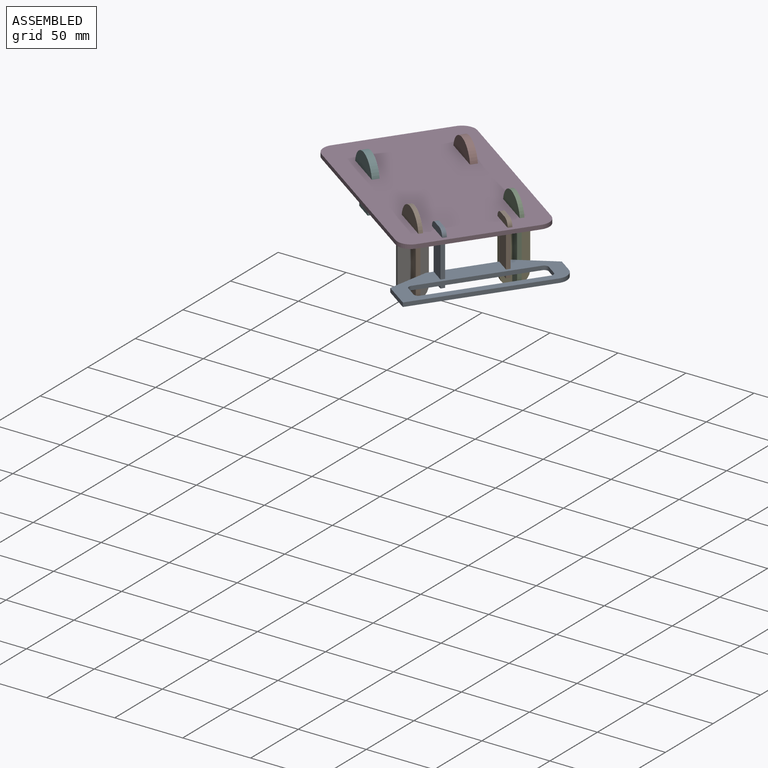
[diagram: assembled view]
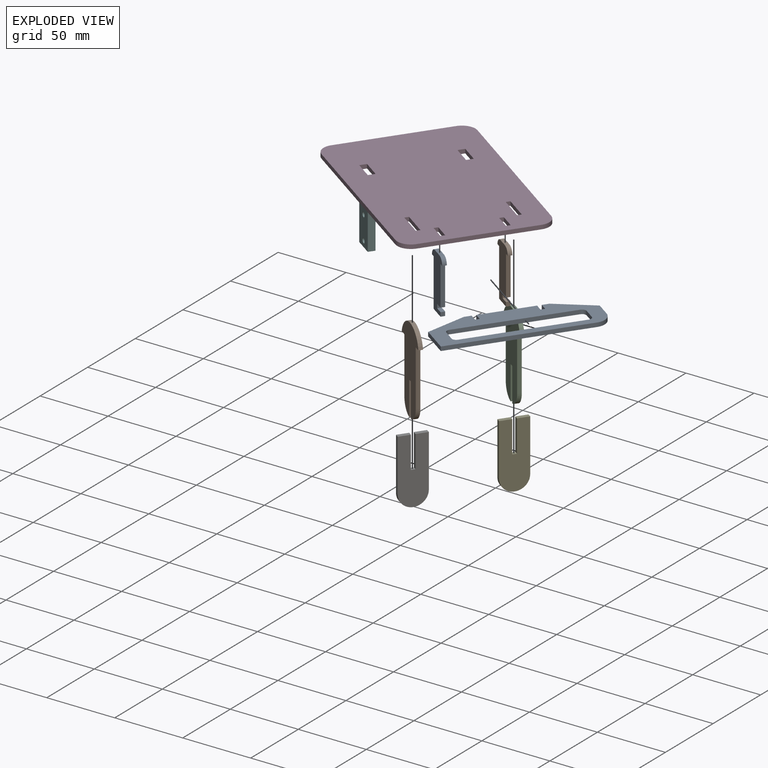
[diagram: exploded view]
GUIDED TOUR — MATED ASSEMBLY (Onshape document 12ebf60cfd6fadaac5f5008e, AutoMate assembly 12ebf60cfd6fadaac5f5008e_ee46109f8fcf921733175e20_84d025841a8fd42f8af90c46_default)

This assembly has 10 components, labeled P0..P9 below (a component is one placed occurrence of a part; the same part can appear more than once), held together by 9 mates. A mate is a constraint between two components; its type names the relative motion it leaves free:
  FASTENED — locks the two components together rigidly (no relative motion).
Axis/direction vectors are unit vectors and 'through' points are millimeter coordinates, both in the assembly's world frame.

MATES
  1. FASTENED "고정 4": P2 <-> P3, direction (0.000, 0.000, -1.000) through (24.18, -59.40, 4.36) mm
  2. FASTENED "고정 2": P5 <-> P3, direction (0.000, 0.000, -1.000) through (-94.03, -54.76, 4.36) mm
  3. FASTENED "고정 3": P9 <-> P3, direction (0.000, 0.000, -1.000) through (-13.10, -112.65, 4.36) mm
  4. FASTENED "고정 9": P0 <-> P8, direction (-0.819, 0.574, 0.000) through (-1.59, -106.67, -26.14) mm
  5. FASTENED "고정 1": P7 <-> P3, direction (0.000, 0.000, -1.000) through (-57.90, -3.15, 4.36) mm
  6. FASTENED "고정 5": P6 <-> P9, direction (0.000, 0.000, 1.000) through (-21.29, -106.91, -22.09) mm
  7. FASTENED "고정 7": P8 <-> P3, direction (0.000, 0.000, -1.000) through (3.33, -110.11, 4.36) mm
  8. FASTENED "고정 8": P1 <-> P3, direction (0.000, 0.000, -1.000) through (27.42, -75.70, 4.36) mm
  9. FASTENED "고정 6": P4 <-> P2, direction (0.000, 0.000, 1.000) through (15.99, -53.66, -22.09) mm

ASSEMBLY ORDER
  1. P7 — the base component [order verified]
  2. P5 [order verified]
  3. P3 [order verified]
  4. P2 [order verified]
  5. P4 [order verified]
  6. P9 [order verified]
  7. P6 [order verified]
  8. P1 [order verified]
  9. P0 [order verified]
  10. P8 [order verified]
(P3, P4, P6 verified with a relaxed clearance tolerance: the source model stores slight part interference there.)
Order-tag legend:
  [order verified] — this step's position reverses a verified removal order: the component was checked to insert without passing through the ones already placed.

Of the 10 components, 10 carry the full construction recipe — the FeatureScript program that regenerates the part's solid from scratch; the rest are supplied as boundary geometry only.
Each toured component is shown spotlighted twice — in the assembled view, then in the exploded view, where a leader line traces a displaced component back to its assembled socket (saturated green if recipe-attached, orange if geometry-only; every other component desaturated gray) — followed by its recipe or geometry summary and the mates that hold it.
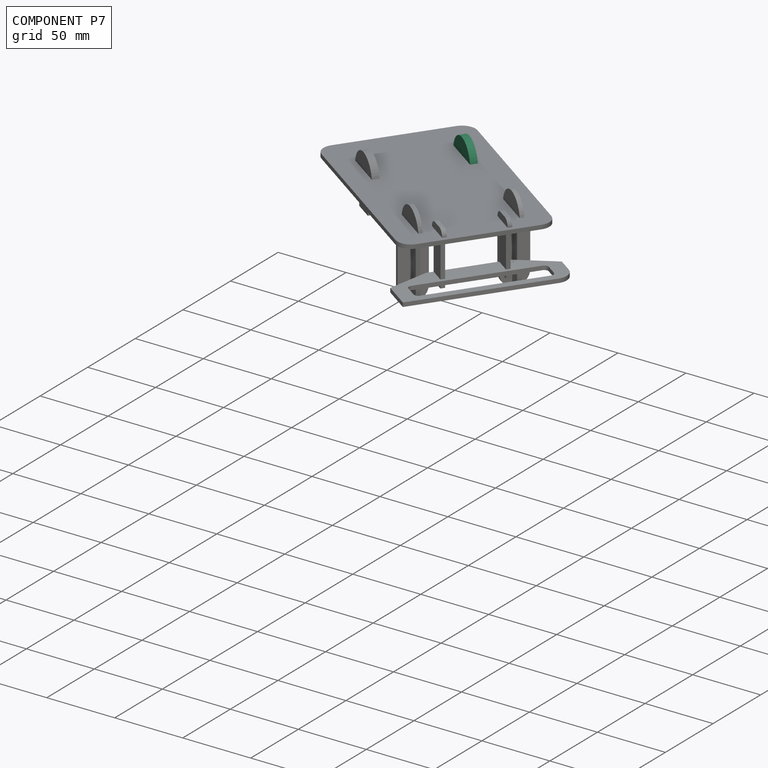
[diagram: component P7 — assembled]
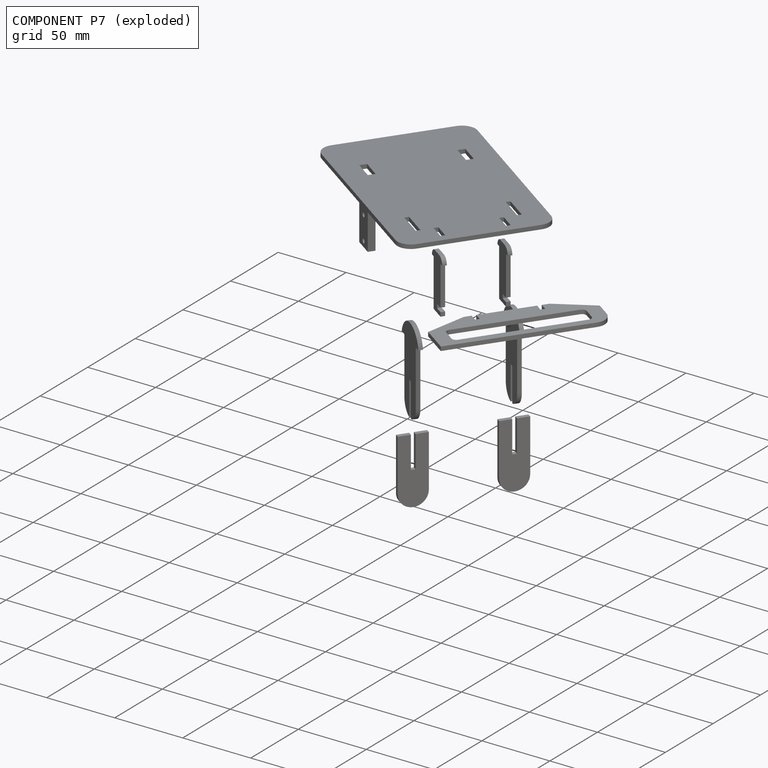
[diagram: component P7 — exploded]
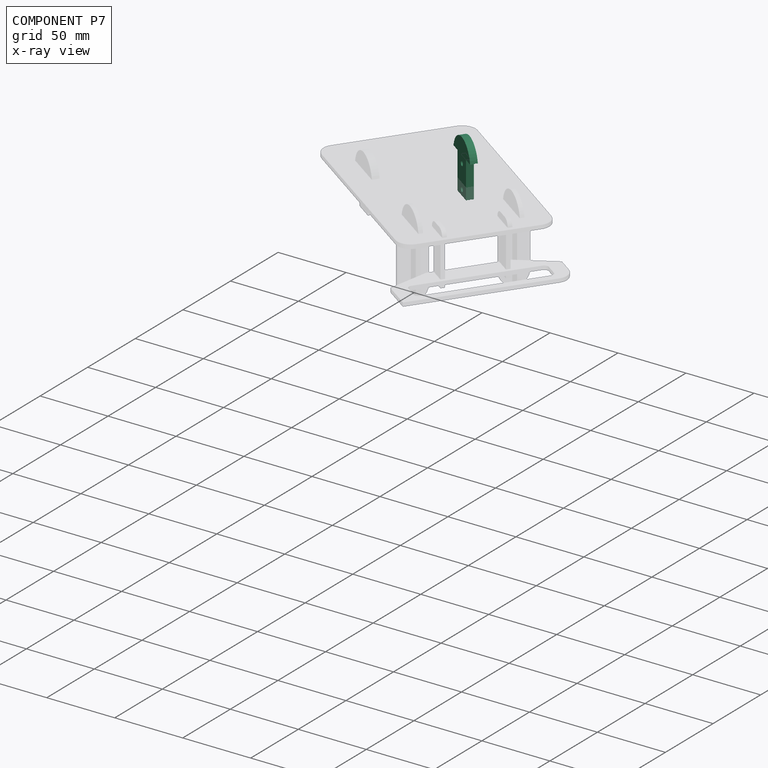
[diagram: component P7 — x-ray view]
COMPONENT P7 — same part as P5 (CADFS 00663879); its construction recipe is shown at P5.
Held by: FASTENED mate "고정 1" to P3.
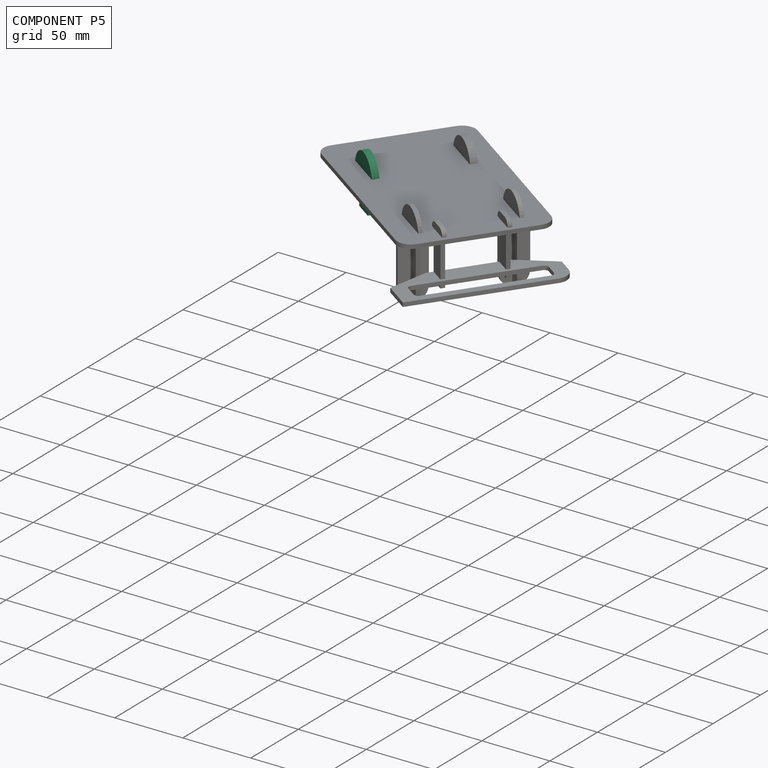
[diagram: component P5 — assembled]
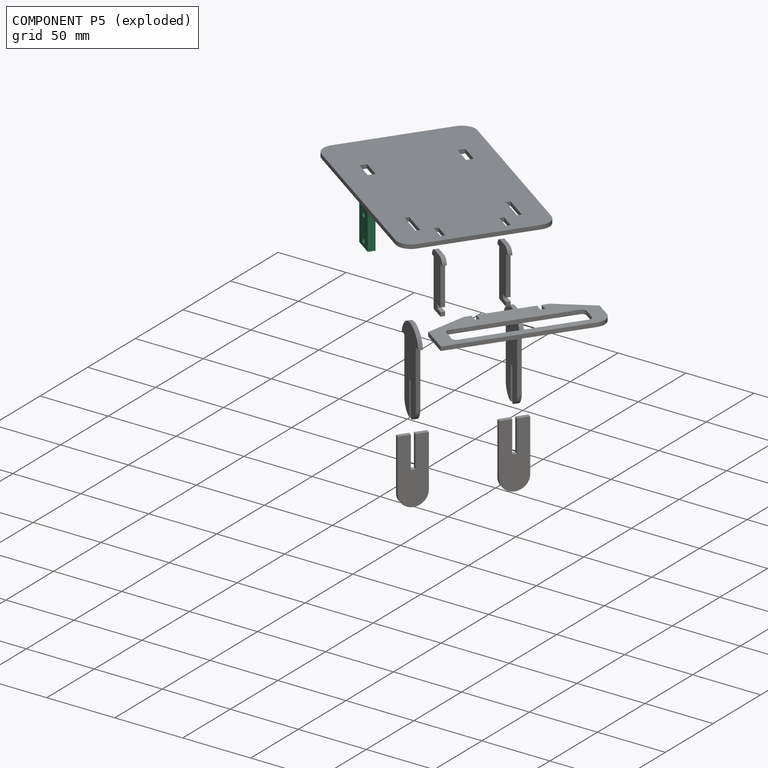
[diagram: component P5 — exploded]
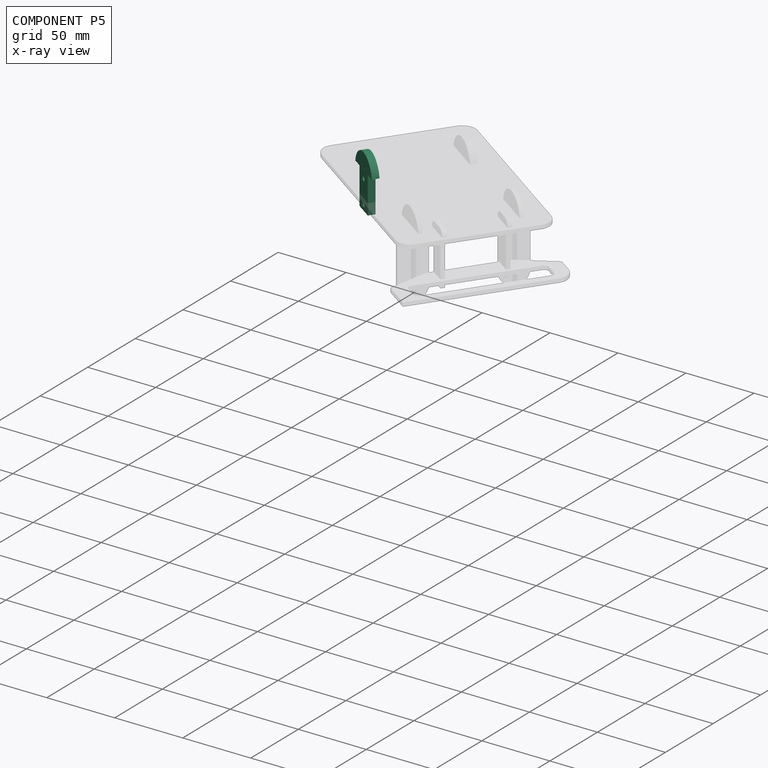
[diagram: component P5 — x-ray view]
COMPONENT P5 — recipe-attached (CADFS 00663879, mesh-verified: the recipe's output STEP matches this component's geometry to below the mesh-comparison resolution (tessellation chordal tolerance ~0.0736 mm)).
Held by: FASTENED mate "고정 2" to P3.
Construction recipe (FeatureScript — the CAD program that rebuilds this solid; sketch coordinates are in the units given by the * unit suffixes, e.g. mm):

FeatureScript 1511;
import(path : "onshape/std/geometry.fs", version : "1511.0");
import(path : "onshape/std/common.fs", version : "1511.0");
const mm = millimeter;
const VERTEX = EntityType.VERTEX;
const EDGE = EntityType.EDGE;
const FACE = EntityType.FACE;
const BODY = EntityType.BODY;
function v(x, y){return vector(x, y);}
function OD(order){return orderDisambiguation(order);}
function OSD(set){return originalSetDisambiguation(set);}
function TD(topology){return topologyDisambiguation(topology);}
function TDD(query){return trueDependencyDisambiguation(query);}
function sQuery(a, b, c) {return sketchEntityQuery(a, b, c);}

annotation { "Feature Type Name" : "Feature", "Feature Type Description" : "" }
export const myFeature = defineFeature(function(context is Context, id is Id, definition is map)
    precondition{}
    {
        {
            var Q0;
            Q0=qCreatedBy(makeId("Front.planeOp"),FACE);
            var sketch = newSketch(context, id + "F0", { "sketchPlane" : qUnion([Q0])});
            skLineSegment(sketch, "E0.top", {"start": v(7.5, -13.5) * mm, "end": v(-7.5, -13.5) * mm});
            skLineSegment(sketch, "E0.left", {"start": v(7.5, 13.5) * mm, "end": v(7.5, -13.5) * mm});
            skLineSegment(sketch, "E0.right", {"start": v(-7.5, 13.5) * mm, "end": v(-7.5, -13.5) * mm});
            skPoint(sketch, "E0.middle", {"position": v(0, 0) * mm});
            skArc(sketch, "E1", {"start": v(14.7, 13.5) * mm, "mid": v(0, 25.5) * mm, "end": v(-14.7, 13.5) * mm});
            skLineSegment(sketch, "E2", {"start": v(-14.7, 13.5) * mm, "end": v(-7.5, 13.5) * mm});
            skLineSegment(sketch, "E3", {"start": v(7.5, 13.5) * mm, "end": v(14.7, 13.5) * mm});
            skCircle(sketch, "E4", {"center": v(0, -9.3) * mm, "radius": 1.75 * mm});
            skCircle(sketch, "E5", {"center": v(0, 8) * mm, "radius": 1.75 * mm});
            skSolve(sketch);
        }
        {
            var Q0;
            Q0 = qSketchRegion(id + "F0", true);
            extrude(context, id + "F1", {"entities" : qUnion([Q0]), "depth" : 5 * mm, "offsetDistance" : 25 * mm});
        }
    });
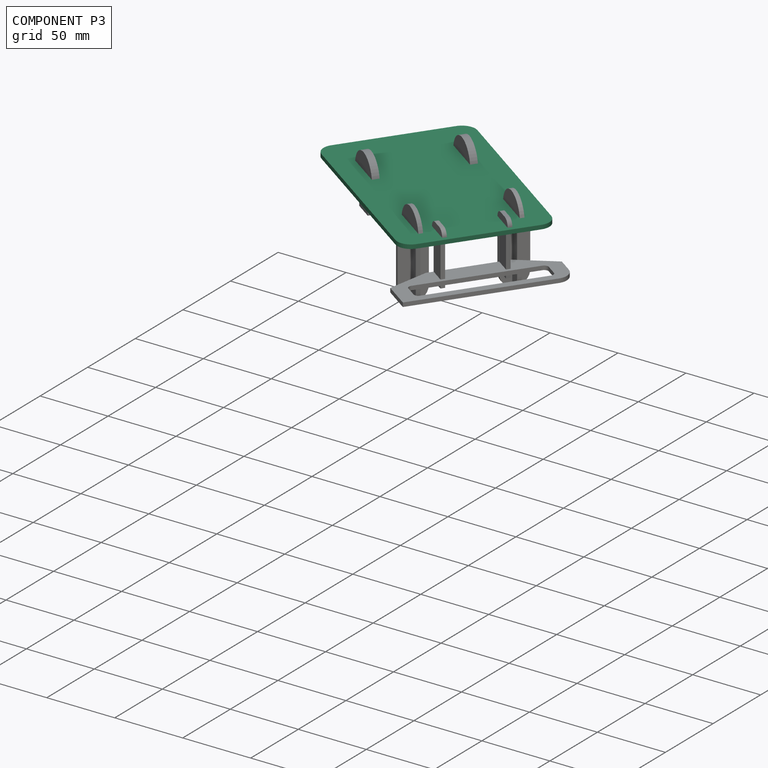
[diagram: component P3 — assembled]
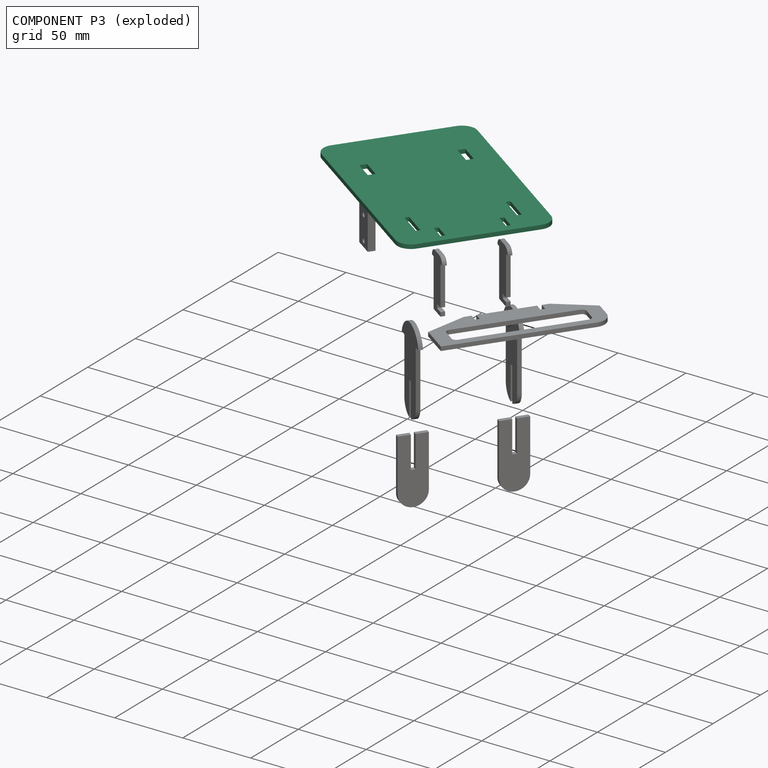
[diagram: component P3 — exploded]
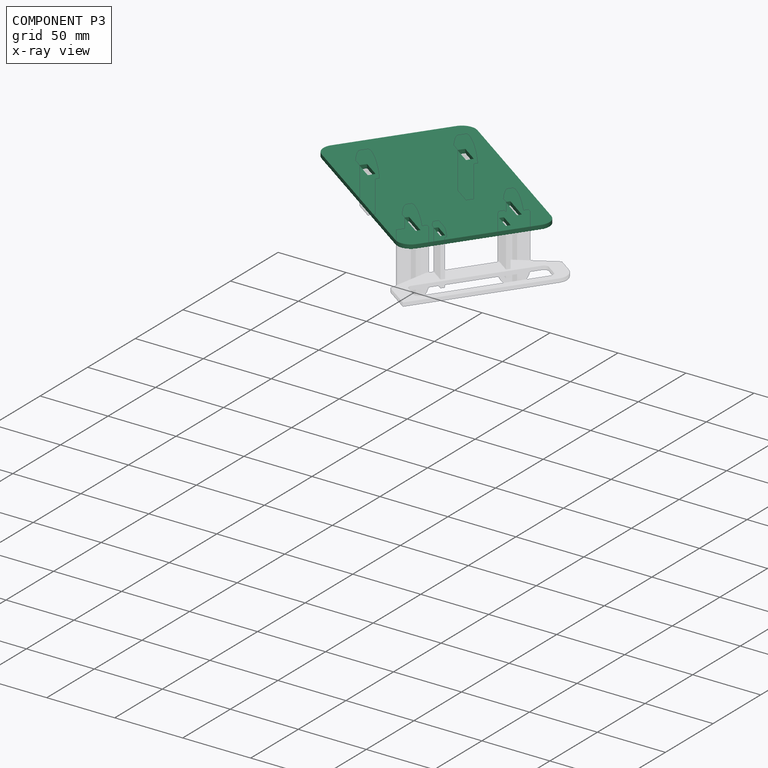
[diagram: component P3 — x-ray view]
COMPONENT P3 — recipe-attached (CADFS 00663878, mesh-verified: the recipe's output STEP matches this component's geometry to below the mesh-comparison resolution (tessellation chordal tolerance ~0.27 mm)).
Held by: FASTENED mate "고정 4" to P2; FASTENED mate "고정 2" to P5; FASTENED mate "고정 3" to P9; FASTENED mate "고정 1" to P7; FASTENED mate "고정 7" to P8; FASTENED mate "고정 8" to P1.
Construction recipe (FeatureScript — the CAD program that rebuilds this solid; sketch coordinates are in the units given by the * unit suffixes, e.g. mm):

FeatureScript 1511;
import(path : "onshape/std/geometry.fs", version : "1511.0");
import(path : "onshape/std/common.fs", version : "1511.0");
const mm = millimeter;
const VERTEX = EntityType.VERTEX;
const EDGE = EntityType.EDGE;
const FACE = EntityType.FACE;
const BODY = EntityType.BODY;
function v(x, y){return vector(x, y);}
function OD(order){return orderDisambiguation(order);}
function OSD(set){return originalSetDisambiguation(set);}
function TD(topology){return topologyDisambiguation(topology);}
function TDD(query){return trueDependencyDisambiguation(query);}
function sQuery(a, b, c) {return sketchEntityQuery(a, b, c);}

annotation { "Feature Type Name" : "Feature", "Feature Type Description" : "" }
export const myFeature = defineFeature(function(context is Context, id is Id, definition is map)
    precondition{}
    {
        {
            var Q0;
            Q0=qCreatedBy(makeId("Front.planeOp"),FACE);
            var sketch = newSketch(context, id + "F0", { "sketchPlane" : qUnion([Q0])});
            skLineSegment(sketch, "E0.bottom", {"start": v(40, 75) * mm, "end": v(-40, 75) * mm});
            skLineSegment(sketch, "E0.top", {"start": v(40, -75) * mm, "end": v(-40, -75) * mm});
            skLineSegment(sketch, "E0.left", {"start": v(50, 65) * mm, "end": v(50, -65) * mm});
            skLineSegment(sketch, "E0.right", {"start": v(-50, 65) * mm, "end": v(-50, -65) * mm});
            skPoint(sketch, "E0.middle", {"position": v(0, 0) * mm});
            skLineSegment(sketch, "E1.bottom", {"start": v(19.5, 69) * mm, "end": v(22.5, 69) * mm});
            skLineSegment(sketch, "E1.top", {"start": v(19.5, 57) * mm, "end": v(22.5, 57) * mm});
            skLineSegment(sketch, "E1.left", {"start": v(19.5, 69) * mm, "end": v(19.5, 57) * mm});
            skLineSegment(sketch, "E1.right", {"start": v(22.5, 69) * mm, "end": v(22.5, 57) * mm});
            skLineSegment(sketch, "E2.bottom", {"start": v(31, 57) * mm, "end": v(34, 57) * mm});
            skLineSegment(sketch, "E2.top", {"start": v(31, 37) * mm, "end": v(34, 37) * mm});
            skLineSegment(sketch, "E2.left", {"start": v(31, 57) * mm, "end": v(31, 37) * mm});
            skLineSegment(sketch, "E2.right", {"start": v(34, 57) * mm, "end": v(34, 37) * mm});
            skLineSegment(sketch, "E3.bottom", {"start": v(29, -27.5) * mm, "end": v(34, -27.5) * mm});
            skLineSegment(sketch, "E3.top", {"start": v(29, -42.5) * mm, "end": v(34, -42.5) * mm});
            skLineSegment(sketch, "E3.left", {"start": v(29, -27.5) * mm, "end": v(29, -42.5) * mm});
            skLineSegment(sketch, "E3.right", {"start": v(34, -27.5) * mm, "end": v(34, -42.5) * mm});
            skPoint(sketch, "E4.visualSharp", {"position": v(-50, 75) * mm});
            skArc(sketch, "E4.filletArc", {"start": v(-40, 75) * mm, "mid": v(-47.07, 72.07) * mm, "end": v(-50, 65) * mm});
            skPoint(sketch, "E5.visualSharp", {"position": v(-50, -75) * mm});
            skArc(sketch, "E5.filletArc", {"start": v(-50, -65) * mm, "mid": v(-47.07, -72.07) * mm, "end": v(-40, -75) * mm});
            skPoint(sketch, "E6.visualSharp", {"position": v(50, -75) * mm});
            skArc(sketch, "E6.filletArc", {"start": v(40, -75) * mm, "mid": v(47.07, -72.07) * mm, "end": v(50, -65) * mm});
            skPoint(sketch, "E7.visualSharp", {"position": v(50, 75) * mm});
            skArc(sketch, "E7.filletArc", {"start": v(50, 65) * mm, "mid": v(47.07, 72.07) * mm, "end": v(40, 75) * mm});
            skLineSegment(sketch, "E8.MirrorCS", {"start": v(-29, -27.5) * mm, "end": v(-34, -27.5) * mm});
            skLineSegment(sketch, "E9.MirrorCS", {"start": v(-31, 37) * mm, "end": v(-34, 37) * mm});
            skLineSegment(sketch, "E10.MirrorCS", {"start": v(-31, 57) * mm, "end": v(-34, 57) * mm});
            skLineSegment(sketch, "E11.MirrorCS", {"start": v(-29, -42.5) * mm, "end": v(-34, -42.5) * mm});
            skLineSegment(sketch, "E12.MirrorCS", {"start": v(-19.5, 57) * mm, "end": v(-22.5, 57) * mm});
            skLineSegment(sketch, "E13.MirrorCS", {"start": v(-19.5, 69) * mm, "end": v(-22.5, 69) * mm});
            skLineSegment(sketch, "E14.MirrorCS", {"start": v(-34, 57) * mm, "end": v(-34, 37) * mm});
            skLineSegment(sketch, "E15.MirrorCS", {"start": v(-31, 57) * mm, "end": v(-31, 37) * mm});
            skLineSegment(sketch, "E16.MirrorCS", {"start": v(-22.5, 69) * mm, "end": v(-22.5, 57) * mm});
            skLineSegment(sketch, "E17.MirrorCS", {"start": v(-19.5, 69) * mm, "end": v(-19.5, 57) * mm});
            skLineSegment(sketch, "E18.MirrorCS", {"start": v(-34, -27.5) * mm, "end": v(-34, -42.5) * mm});
            skLineSegment(sketch, "E19.MirrorCS", {"start": v(-29, -27.5) * mm, "end": v(-29, -42.5) * mm});
            skSolve(sketch);
        }
        {
            var Q0;
            Q0 = qSketchRegion(id + "F0", true);
            extrude(context, id + "F1", {"entities" : qUnion([Q0]), "depth" : 3 * mm, "offsetDistance" : 25 * mm});
        }
    });
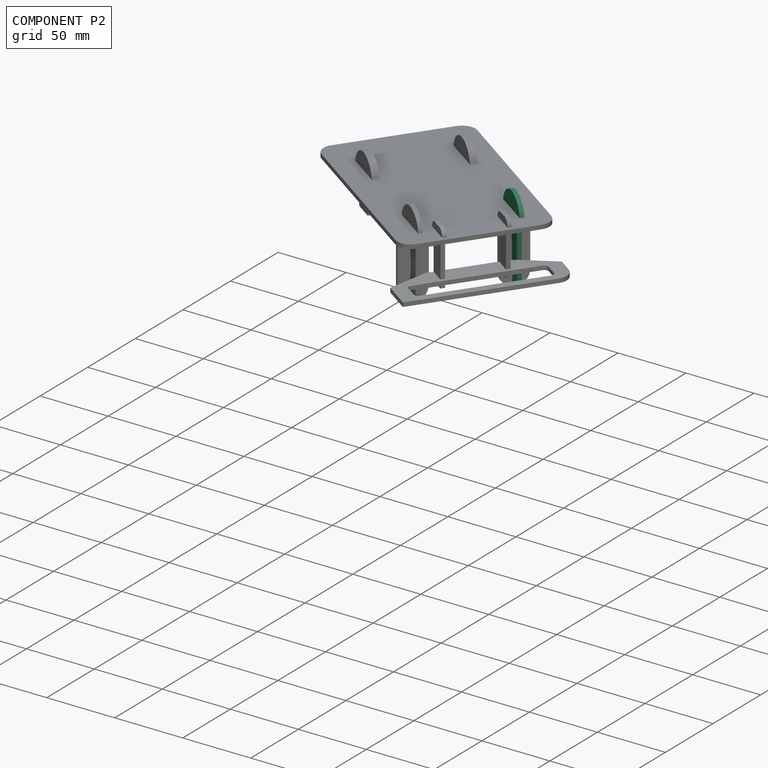
[diagram: component P2 — assembled]
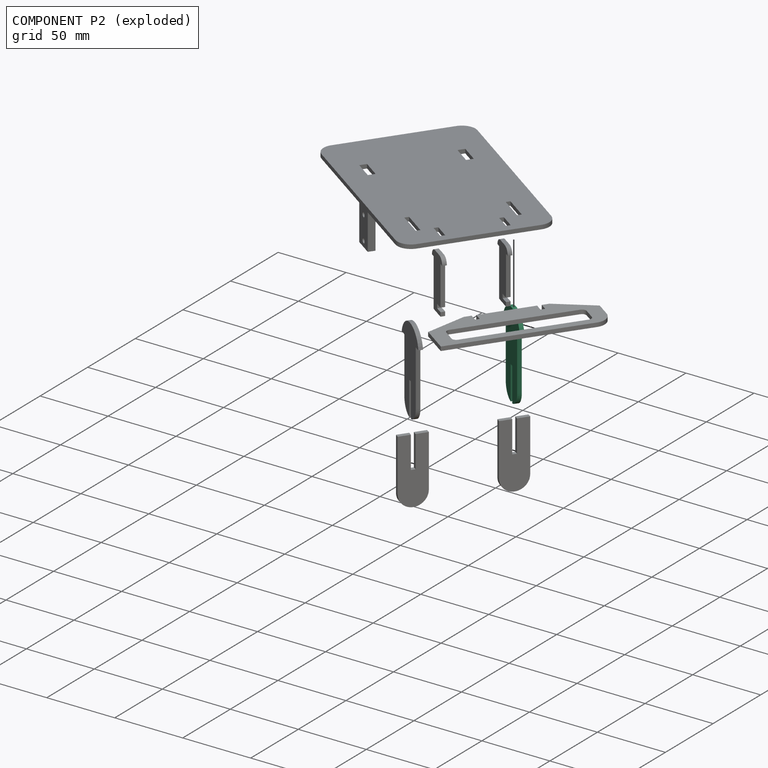
[diagram: component P2 — exploded]
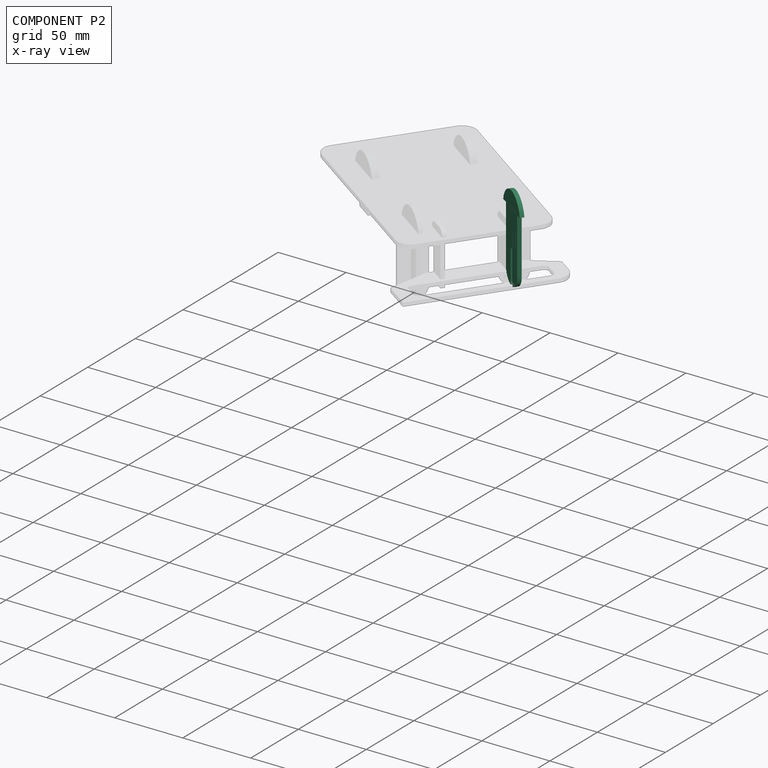
[diagram: component P2 — x-ray view]
COMPONENT P2 — recipe-attached (CADFS 00663881, mesh-verified: the recipe's output STEP matches this component's geometry to below the mesh-comparison resolution (tessellation chordal tolerance ~0.105 mm)).
Held by: FASTENED mate "고정 4" to P3; FASTENED mate "고정 6" to P4.
Construction recipe (FeatureScript — the CAD program that rebuilds this solid; sketch coordinates are in the units given by the * unit suffixes, e.g. mm):

FeatureScript 1511;
import(path : "onshape/std/geometry.fs", version : "1511.0");
import(path : "onshape/std/common.fs", version : "1511.0");
const mm = millimeter;
const VERTEX = EntityType.VERTEX;
const EDGE = EntityType.EDGE;
const FACE = EntityType.FACE;
const BODY = EntityType.BODY;
function v(x, y){return vector(x, y);}
function OD(order){return orderDisambiguation(order);}
function OSD(set){return originalSetDisambiguation(set);}
function TD(topology){return topologyDisambiguation(topology);}
function TDD(query){return trueDependencyDisambiguation(query);}
function sQuery(a, b, c) {return sketchEntityQuery(a, b, c);}

annotation { "Feature Type Name" : "Feature", "Feature Type Description" : "" }
export const myFeature = defineFeature(function(context is Context, id is Id, definition is map)
    precondition{}
    {
        {
            var Q0;
            Q0=qCreatedBy(makeId("Front.planeOp"),FACE);
            var sketch = newSketch(context, id + "F0", { "sketchPlane" : qUnion([Q0])});
            skLineSegment(sketch, "E0.left", {"start": v(10, 20.73) * mm, "end": v(10, -20.72) * mm});
            skLineSegment(sketch, "E0.right", {"start": v(-10, 20.73) * mm, "end": v(-10, -20.72) * mm});
            skPoint(sketch, "E0.middle", {"position": v(0, 0) * mm});
            skArc(sketch, "E1", {"start": v(14.7, 20.73) * mm, "mid": v(0, 32.73) * mm, "end": v(-14.7, 20.73) * mm});
            skArc(sketch, "E2", {"start": v(-10, -20.73) * mm, "mid": v(-7.58, -27.24) * mm, "end": v(-1.5, -30.61) * mm});
            skLineSegment(sketch, "E3", {"start": v(-14.7, 20.73) * mm, "end": v(-10, 20.73) * mm});
            skLineSegment(sketch, "E4", {"start": v(10, 20.73) * mm, "end": v(14.7, 20.73) * mm});
            skLineSegment(sketch, "E5.bottom", {"start": v(-1.5, -5.72) * mm, "end": v(1.5, -5.72) * mm});
            skLineSegment(sketch, "E5.left", {"start": v(-1.5, -5.72) * mm, "end": v(-1.5, -30.61) * mm});
            skLineSegment(sketch, "E5.right", {"start": v(1.5, -5.72) * mm, "end": v(1.5, -30.61) * mm});
            skArc(sketch, "E6.trimOffspring", {"start": v(1.5, -30.61) * mm, "mid": v(7.58, -27.24) * mm, "end": v(10, -20.72) * mm});
            skSolve(sketch);
        }
        {
            var Q0;
            Q0 = qSketchRegion(id + "F0", true);
            extrude(context, id + "F1", {"entities" : qUnion([Q0]), "depth" : 3 * mm, "offsetDistance" : 25 * mm});
        }
    });
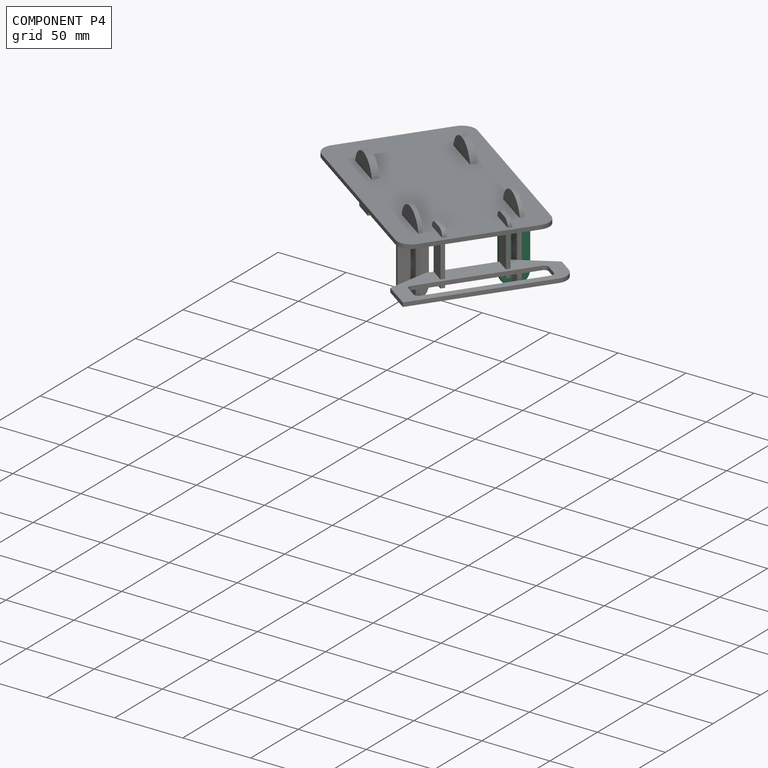
[diagram: component P4 — assembled]
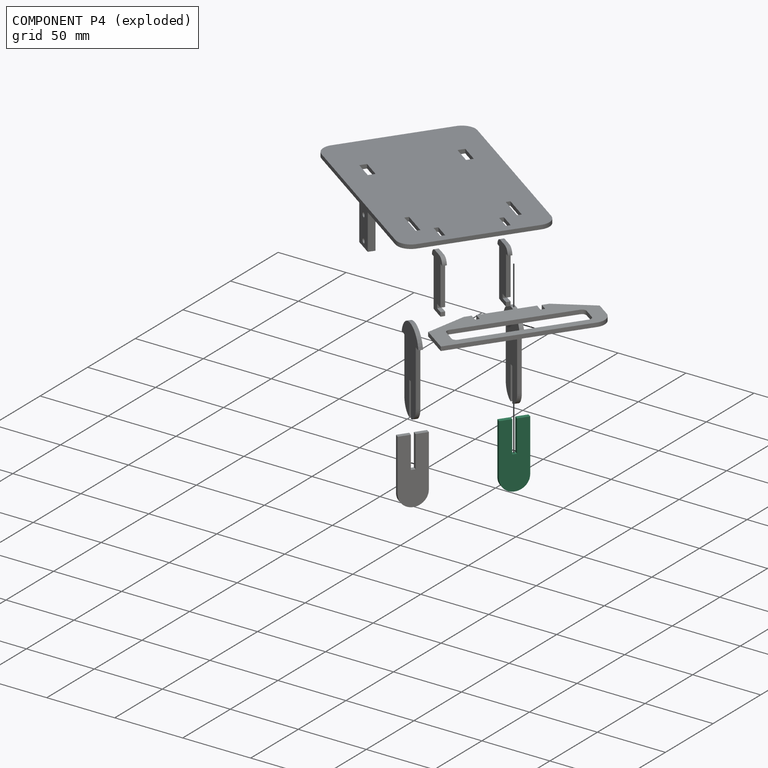
[diagram: component P4 — exploded]
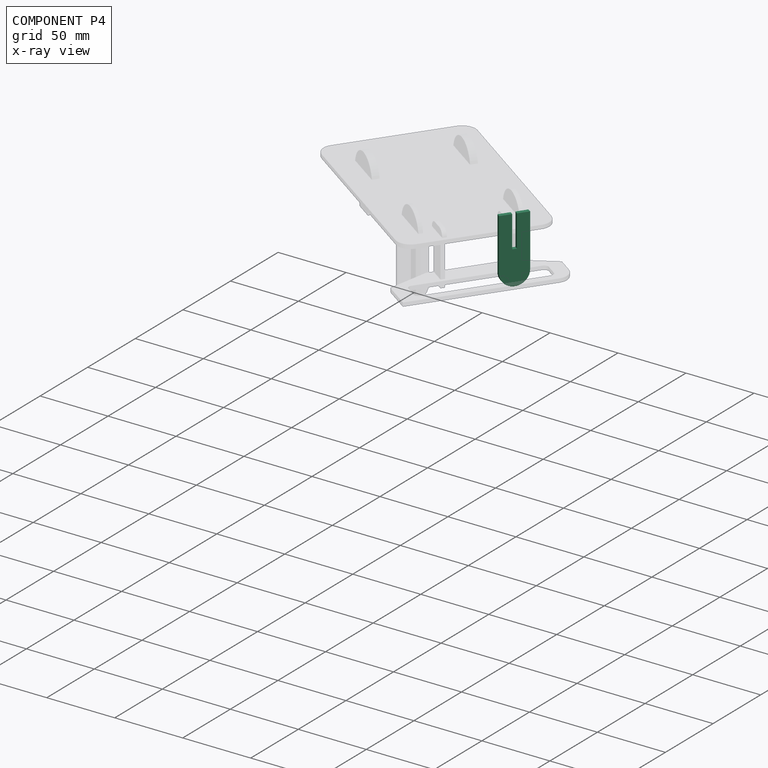
[diagram: component P4 — x-ray view]
COMPONENT P4 — recipe-attached (CADFS 00663882, mesh-verified: the recipe's output STEP matches this component's geometry to below the mesh-comparison resolution (tessellation chordal tolerance ~0.0786 mm)).
Held by: FASTENED mate "고정 6" to P2.
Construction recipe (FeatureScript — the CAD program that rebuilds this solid; sketch coordinates are in the units given by the * unit suffixes, e.g. mm):

FeatureScript 1511;
import(path : "onshape/std/geometry.fs", version : "1511.0");
import(path : "onshape/std/common.fs", version : "1511.0");
const mm = millimeter;
const VERTEX = EntityType.VERTEX;
const EDGE = EntityType.EDGE;
const FACE = EntityType.FACE;
const BODY = EntityType.BODY;
function v(x, y){return vector(x, y);}
function OD(order){return orderDisambiguation(order);}
function OSD(set){return originalSetDisambiguation(set);}
function TD(topology){return topologyDisambiguation(topology);}
function TDD(query){return trueDependencyDisambiguation(query);}
function sQuery(a, b, c) {return sketchEntityQuery(a, b, c);}

annotation { "Feature Type Name" : "Feature", "Feature Type Description" : "" }
export const myFeature = defineFeature(function(context is Context, id is Id, definition is map)
    precondition{}
    {
        {
            var Q0;
            Q0=qCreatedBy(makeId("Front.planeOp"),FACE);
            var sketch = newSketch(context, id + "F0", { "sketchPlane" : qUnion([Q0])});
            skLineSegment(sketch, "E0.top", {"start": v(10, 19.17) * mm, "end": v(1.5, 19.17) * mm});
            skLineSegment(sketch, "E0.left", {"start": v(10, -19.17) * mm, "end": v(10, 19.17) * mm});
            skLineSegment(sketch, "E0.right", {"start": v(-10, -19.17) * mm, "end": v(-10, 19.17) * mm});
            skPoint(sketch, "E0.middle", {"position": v(0, 0) * mm});
            skArc(sketch, "E1", {"start": v(-10, -19.17) * mm, "mid": v(0, -29.17) * mm, "end": v(10, -19.17) * mm});
            skLineSegment(sketch, "E2.top", {"start": v(-1.5, -4.28) * mm, "end": v(1.5, -4.28) * mm});
            skLineSegment(sketch, "E2.left", {"start": v(-1.5, 19.17) * mm, "end": v(-1.5, -4.28) * mm});
            skLineSegment(sketch, "E2.right", {"start": v(1.5, 19.17) * mm, "end": v(1.5, -4.28) * mm});
            skLineSegment(sketch, "E3.trimOffspring", {"start": v(-1.5, 19.17) * mm, "end": v(-10, 19.17) * mm});
            skSolve(sketch);
        }
        {
            var Q0;
            Q0 = qSketchRegion(id + "F0", true);
            extrude(context, id + "F1", {"entities" : qUnion([Q0]), "depth" : 3 * mm, "offsetDistance" : 25 * mm});
        }
    });
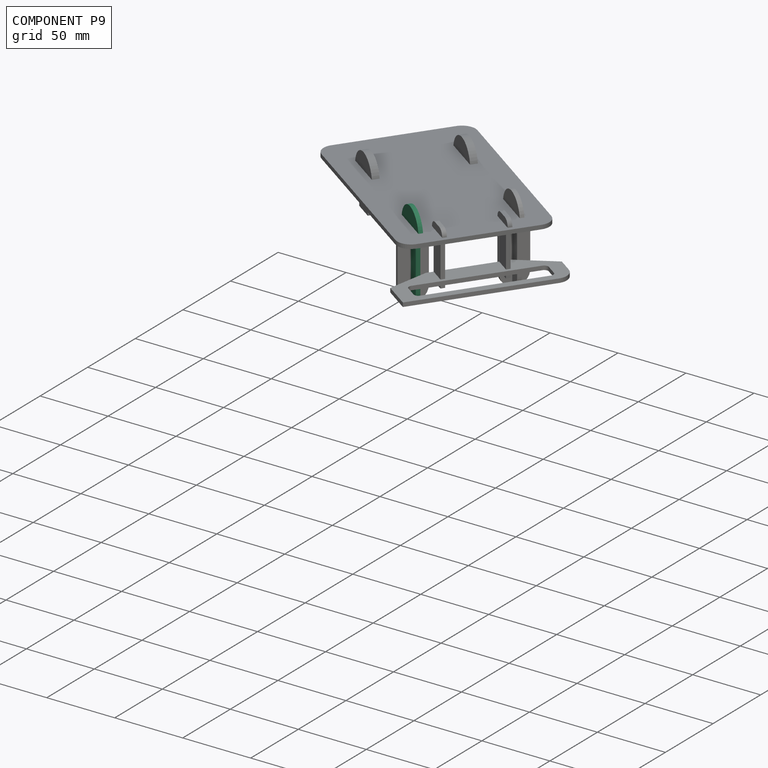
[diagram: component P9 — assembled]
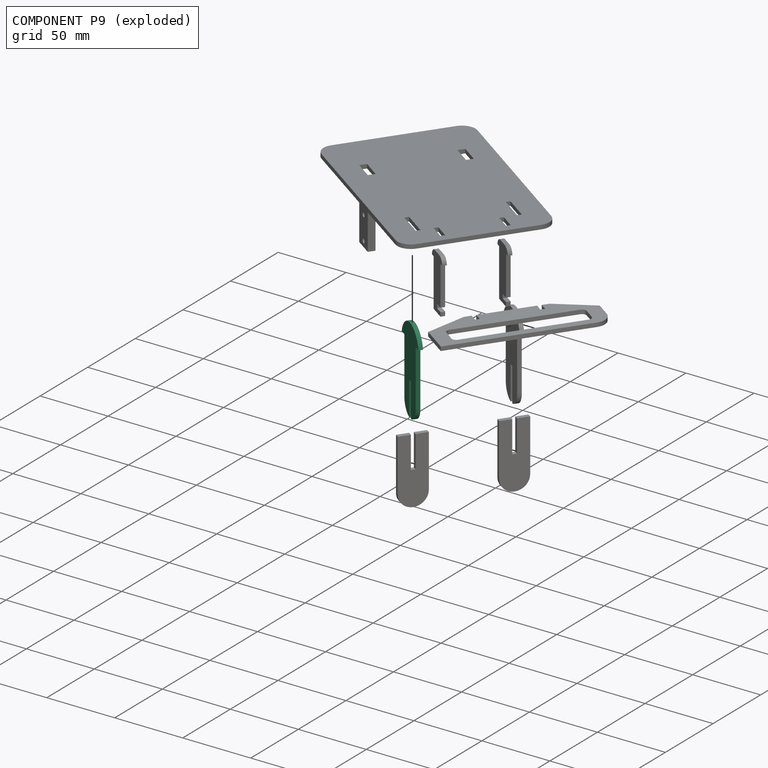
[diagram: component P9 — exploded]
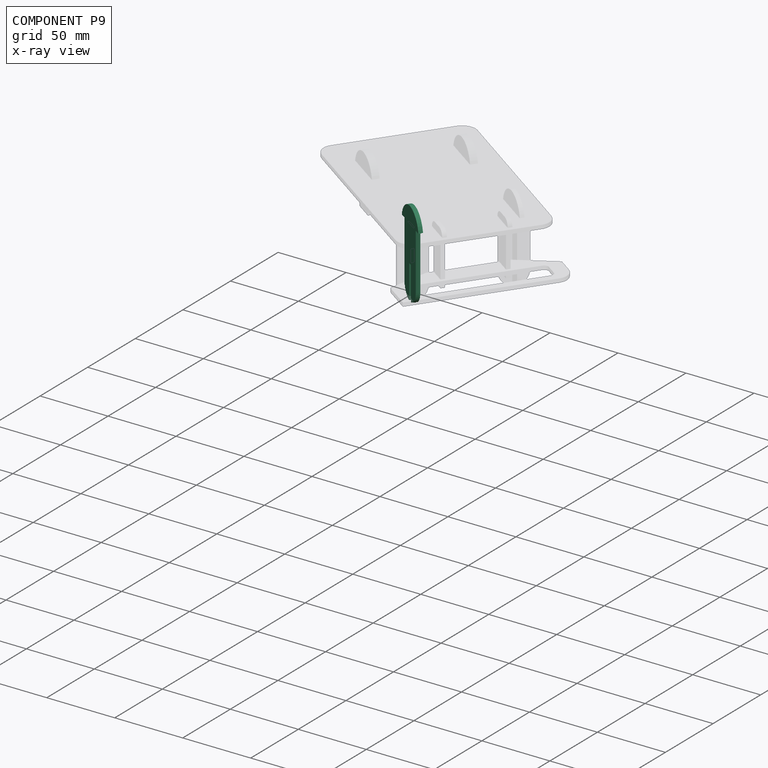
[diagram: component P9 — x-ray view]
COMPONENT P9 — same part as P2 (CADFS 00663881); its construction recipe is shown at P2.
Held by: FASTENED mate "고정 3" to P3; FASTENED mate "고정 5" to P6.
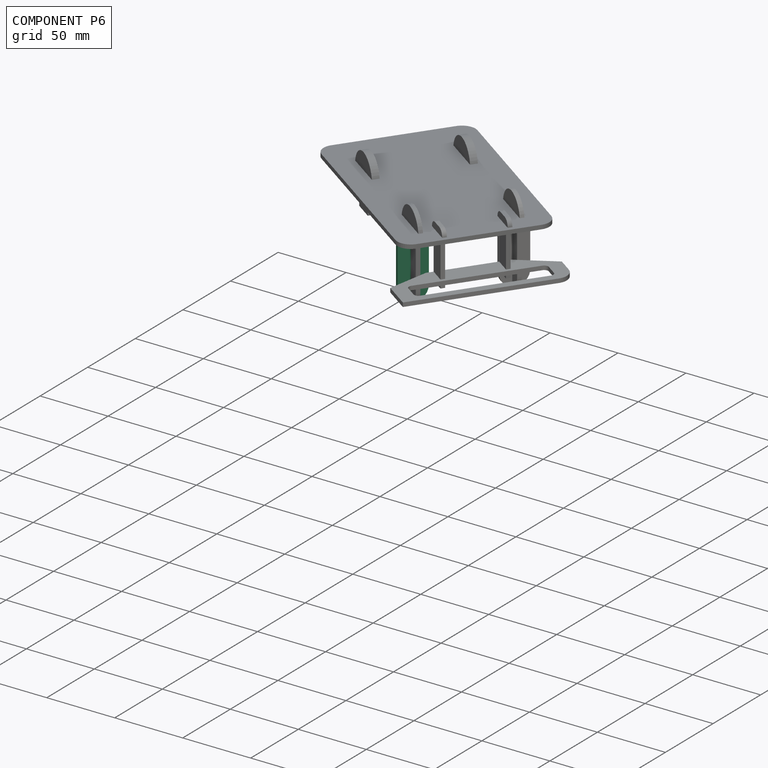
[diagram: component P6 — assembled]
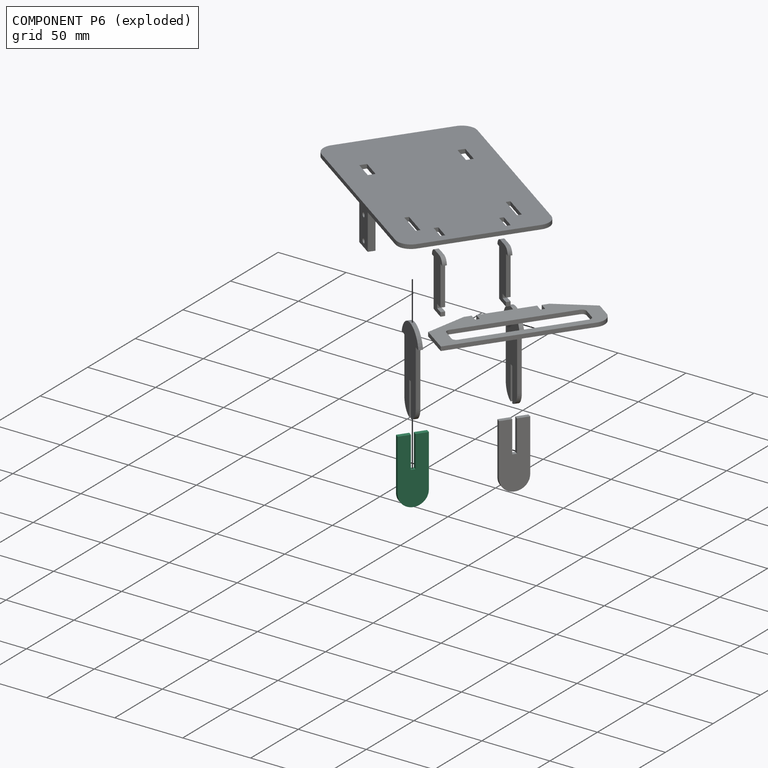
[diagram: component P6 — exploded]
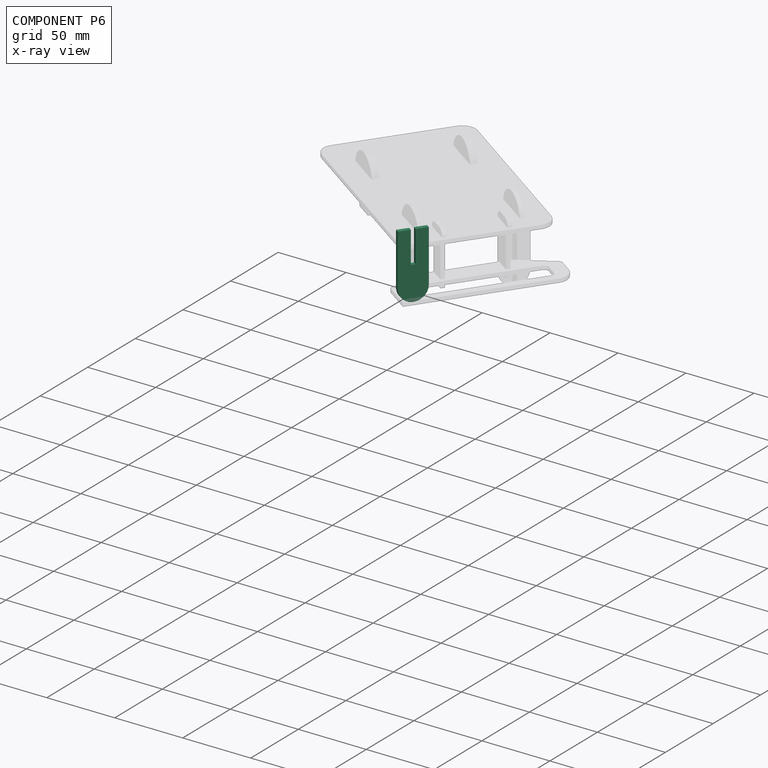
[diagram: component P6 — x-ray view]
COMPONENT P6 — same part as P4 (CADFS 00663882); its construction recipe is shown at P4.
Held by: FASTENED mate "고정 5" to P9.
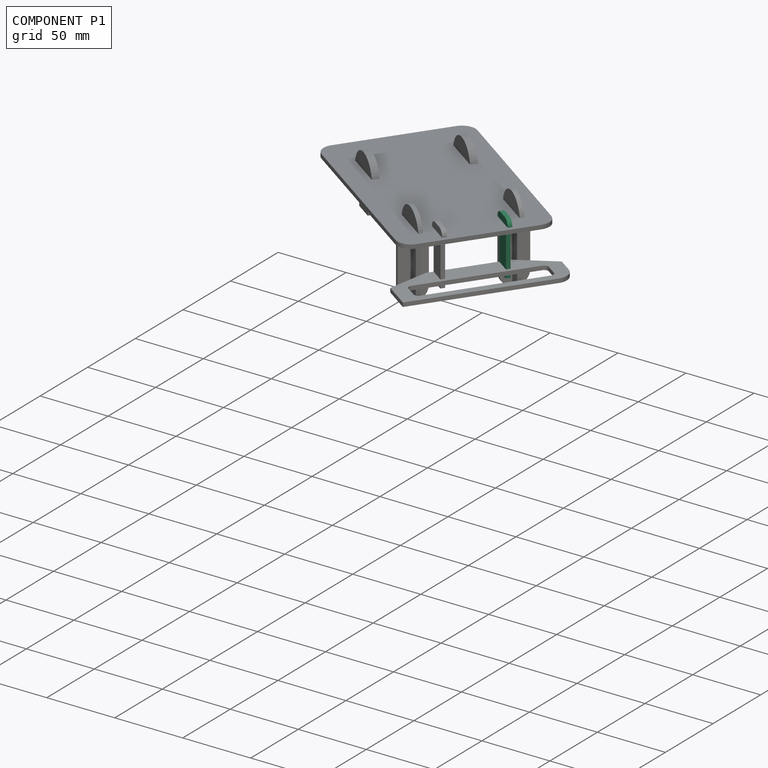
[diagram: component P1 — assembled]
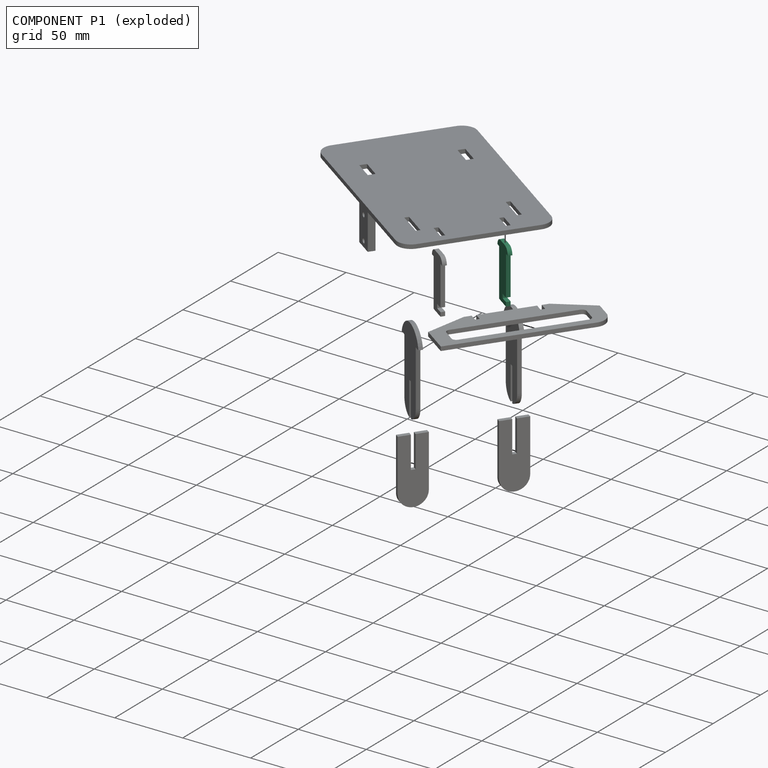
[diagram: component P1 — exploded]
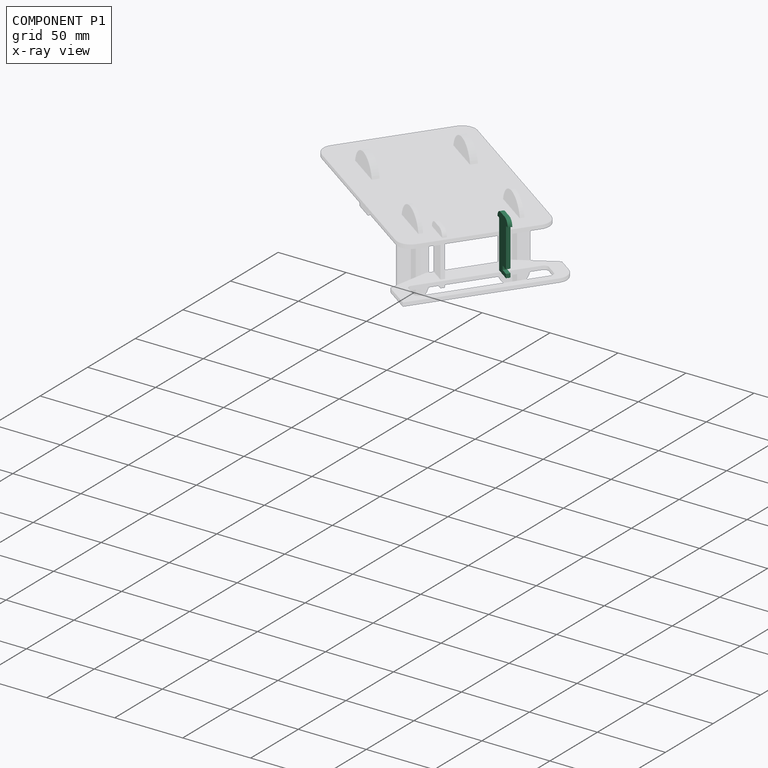
[diagram: component P1 — x-ray view]
COMPONENT P1 — recipe-attached (CADFS 00663880, mesh-verified: the recipe's output STEP matches this component's geometry to below the mesh-comparison resolution (tessellation chordal tolerance ~0.0659 mm)).
Held by: FASTENED mate "고정 8" to P3.
Construction recipe (FeatureScript — the CAD program that rebuilds this solid; sketch coordinates are in the units given by the * unit suffixes, e.g. mm):

FeatureScript 1511;
import(path : "onshape/std/geometry.fs", version : "1511.0");
import(path : "onshape/std/common.fs", version : "1511.0");
const mm = millimeter;
const VERTEX = EntityType.VERTEX;
const EDGE = EntityType.EDGE;
const FACE = EntityType.FACE;
const BODY = EntityType.BODY;
function v(x, y){return vector(x, y);}
function OD(order){return orderDisambiguation(order);}
function OSD(set){return originalSetDisambiguation(set);}
function TD(topology){return topologyDisambiguation(topology);}
function TDD(query){return trueDependencyDisambiguation(query);}
function sQuery(a, b, c) {return sketchEntityQuery(a, b, c);}

annotation { "Feature Type Name" : "Feature", "Feature Type Description" : "" }
export const myFeature = defineFeature(function(context is Context, id is Id, definition is map)
    precondition{}
    {
        {
            var Q0;
            Q0=qCreatedBy(makeId("Front.planeOp"),FACE);
            var sketch = newSketch(context, id + "F0", { "sketchPlane" : qUnion([Q0])});
            skLineSegment(sketch, "E0.top", {"start": v(6, -17.5) * mm, "end": v(-6, -17.5) * mm});
            skLineSegment(sketch, "E0.left", {"start": v(6, 17.5) * mm, "end": v(6, -17.5) * mm});
            skLineSegment(sketch, "E0.right", {"start": v(-6, 17.5) * mm, "end": v(-6, -11.5) * mm});
            skPoint(sketch, "E0.middle", {"position": v(0, 0) * mm});
            skLineSegment(sketch, "E1.bottom", {"start": v(9, 17.5) * mm, "end": v(6, 17.5) * mm});
            skLineSegment(sketch, "E1.top", {"start": v(4, 22.5) * mm, "end": v(-4, 22.5) * mm});
            skLineSegment(sketch, "E1.left", {"start": v(9, 17.5) * mm, "end": v(9, 17.5) * mm});
            skLineSegment(sketch, "E1.right", {"start": v(-9, 17.5) * mm, "end": v(-9, 17.5) * mm});
            skLineSegment(sketch, "E2.bottom", {"start": v(-6, -11.5) * mm, "end": v(0, -11.5) * mm});
            skLineSegment(sketch, "E2.top", {"start": v(-6, -14.5) * mm, "end": v(0, -14.5) * mm});
            skLineSegment(sketch, "E2.right", {"start": v(0, -11.5) * mm, "end": v(0, -14.5) * mm});
            skPoint(sketch, "E3.visualSharp", {"position": v(-9, 22.5) * mm});
            skArc(sketch, "E3.filletArc", {"start": v(-4, 22.5) * mm, "mid": v(-7.54, 21.04) * mm, "end": v(-9, 17.5) * mm});
            skPoint(sketch, "E4.visualSharp", {"position": v(9, 22.5) * mm});
            skArc(sketch, "E4.filletArc", {"start": v(9, 17.5) * mm, "mid": v(7.54, 21.04) * mm, "end": v(4, 22.5) * mm});
            skLineSegment(sketch, "E5.trimOffspring", {"start": v(-6, -14.5) * mm, "end": v(-6, -17.5) * mm});
            skLineSegment(sketch, "E6.trimOffspring", {"start": v(-6, 17.5) * mm, "end": v(-9, 17.5) * mm});
            skSolve(sketch);
        }
        {
            var Q0;
            Q0 = qSketchRegion(id + "F0", true);
            extrude(context, id + "F1", {"entities" : qUnion([Q0]), "depth" : 3 * mm, "offsetDistance" : 25 * mm});
        }
    });
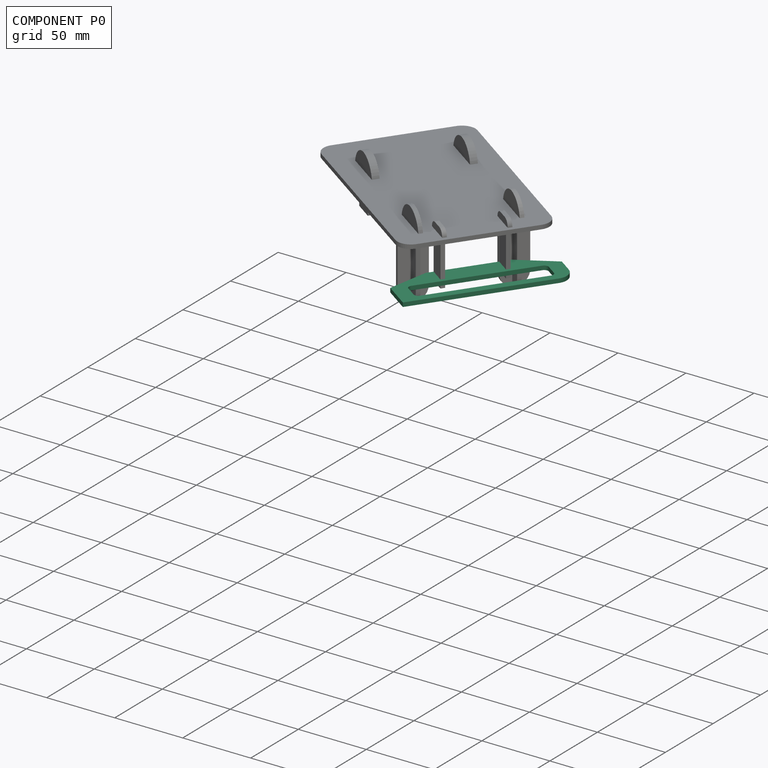
[diagram: component P0 — assembled]
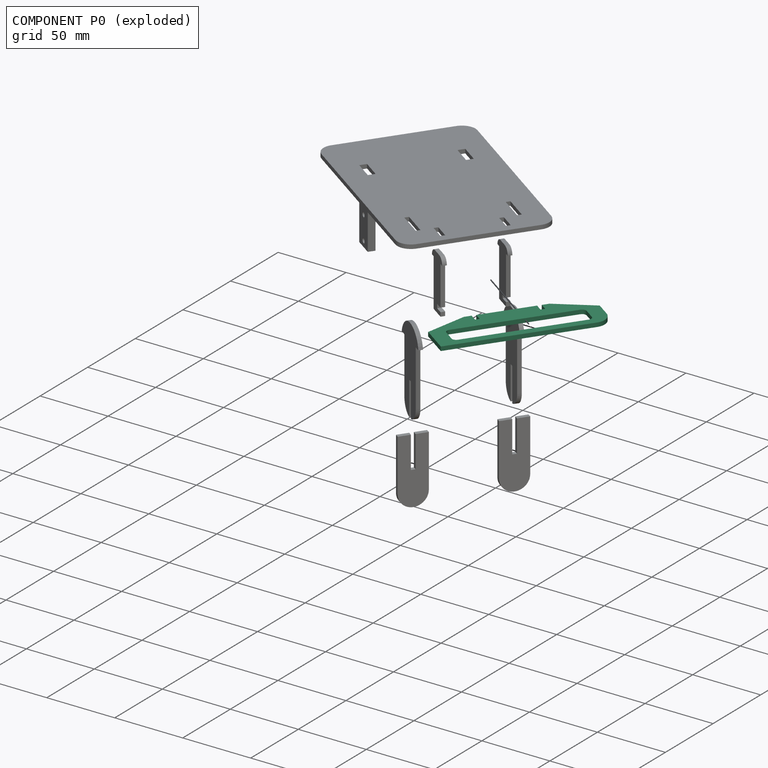
[diagram: component P0 — exploded]
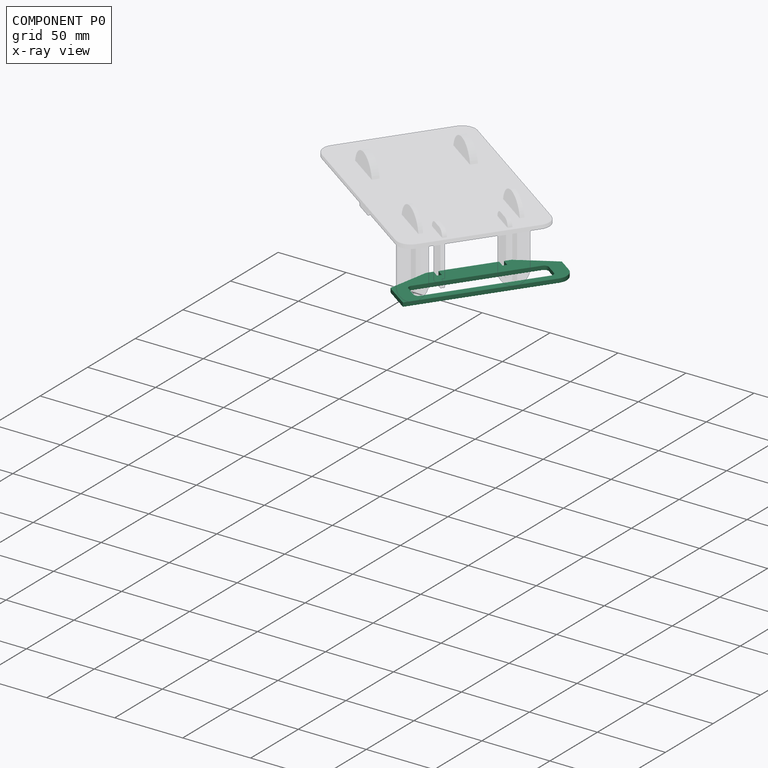
[diagram: component P0 — x-ray view]
COMPONENT P0 — recipe-attached (CADFS 00663883, mesh-verified: the recipe's output STEP matches this component's geometry to below the mesh-comparison resolution (tessellation chordal tolerance ~0.173 mm)).
Held by: FASTENED mate "고정 9" to P8.
Construction recipe (FeatureScript — the CAD program that rebuilds this solid; sketch coordinates are in the units given by the * unit suffixes, e.g. mm):

FeatureScript 1511;
import(path : "onshape/std/geometry.fs", version : "1511.0");
import(path : "onshape/std/common.fs", version : "1511.0");
const mm = millimeter;
const VERTEX = EntityType.VERTEX;
const EDGE = EntityType.EDGE;
const FACE = EntityType.FACE;
const BODY = EntityType.BODY;
function v(x, y){return vector(x, y);}
function OD(order){return orderDisambiguation(order);}
function OSD(set){return originalSetDisambiguation(set);}
function TD(topology){return topologyDisambiguation(topology);}
function TDD(query){return trueDependencyDisambiguation(query);}
function sQuery(a, b, c) {return sketchEntityQuery(a, b, c);}

annotation { "Feature Type Name" : "Feature", "Feature Type Description" : "" }
export const myFeature = defineFeature(function(context is Context, id is Id, definition is map)
    precondition{}
    {
        {
            var Q0;
            Q0=qCreatedBy(makeId("Front.planeOp"),FACE);
            var sketch = newSketch(context, id + "F0", { "sketchPlane" : qUnion([Q0])});
            skLineSegment(sketch, "E0.0", {"start": v(4.68, 55) * mm, "end": v(17.5, 27.5) * mm});
            skLineSegment(sketch, "E0.1", {"start": v(17.5, 27.5) * mm, "end": v(17.5, 22.5) * mm});
            skLineSegment(sketch, "E0.2", {"start": v(17.5, -27.5) * mm, "end": v(4.68, -55) * mm});
            skLineSegment(sketch, "E0.3", {"start": v(4.68, -55) * mm, "end": v(-17.5, -55) * mm});
            skLineSegment(sketch, "E0.4", {"start": v(-17.5, -55) * mm, "end": v(-17.5, 45) * mm});
            skLineSegment(sketch, "E0.5", {"start": v(-7.5, 55) * mm, "end": v(4.68, 55) * mm});
            skLineSegment(sketch, "E1.bottom", {"start": v(17.5, 22.5) * mm, "end": v(11.5, 22.5) * mm});
            skLineSegment(sketch, "E1.top", {"start": v(17.5, 19.5) * mm, "end": v(11.5, 19.5) * mm});
            skLineSegment(sketch, "E1.right", {"start": v(11.5, 22.5) * mm, "end": v(11.5, 19.5) * mm});
            skLineSegment(sketch, "E2.trimOffspring", {"start": v(17.5, 19.5) * mm, "end": v(17.5, -19.5) * mm});
            skLineSegment(sketch, "E3.MirrorCS", {"start": v(17.5, -19.5) * mm, "end": v(11.5, -19.5) * mm});
            skLineSegment(sketch, "E4.MirrorCS", {"start": v(11.5, -22.5) * mm, "end": v(11.5, -19.5) * mm});
            skLineSegment(sketch, "E5.MirrorCS", {"start": v(17.5, -22.5) * mm, "end": v(11.5, -22.5) * mm});
            skPoint(sketch, "E6.MirrorCS.start.orphan", {"position": v(17.5, -22.5) * mm});
            skLineSegment(sketch, "E7.trimOffspring", {"start": v(17.5, -22.5) * mm, "end": v(17.5, -27.5) * mm});
            skLineSegment(sketch, "E8.bottom", {"start": v(-8.9, 45) * mm, "end": v(0.1, 45) * mm});
            skLineSegment(sketch, "E8.top", {"start": v(-8.9, -45) * mm, "end": v(0.1, -45) * mm});
            skLineSegment(sketch, "E8.left", {"start": v(-11.9, 42) * mm, "end": v(-11.9, -42) * mm});
            skLineSegment(sketch, "E8.right", {"start": v(3.1, 42) * mm, "end": v(3.1, -42) * mm});
            skPoint(sketch, "E9.visualSharp", {"position": v(-17.5, 55) * mm});
            skArc(sketch, "E9.filletArc", {"start": v(-7.5, 55) * mm, "mid": v(-14.57, 52.07) * mm, "end": v(-17.5, 45) * mm});
            skPoint(sketch, "E10.visualSharp", {"position": v(-11.9, 45) * mm});
            skArc(sketch, "E10.filletArc", {"start": v(-8.9, 45) * mm, "mid": v(-11.02, 44.12) * mm, "end": v(-11.9, 42) * mm});
            skPoint(sketch, "E11.visualSharp", {"position": v(3.1, 45) * mm});
            skArc(sketch, "E11.filletArc", {"start": v(3.1, 42) * mm, "mid": v(2.22, 44.12) * mm, "end": v(0.1, 45) * mm});
            skPoint(sketch, "E12.visualSharp", {"position": v(-11.9, -45) * mm});
            skArc(sketch, "E12.filletArc", {"start": v(-11.9, -42) * mm, "mid": v(-11.02, -44.12) * mm, "end": v(-8.9, -45) * mm});
            skPoint(sketch, "E13.visualSharp", {"position": v(3.1, -45) * mm});
            skArc(sketch, "E13.filletArc", {"start": v(0.1, -45) * mm, "mid": v(2.22, -44.12) * mm, "end": v(3.1, -42) * mm});
            skSolve(sketch);
        }
        {
            var Q0;
            Q0 = qSketchRegion(id + "F0", true);
            extrude(context, id + "F1", {"entities" : qUnion([Q0]), "depth" : 3 * mm, "offsetDistance" : 25 * mm});
        }
    });
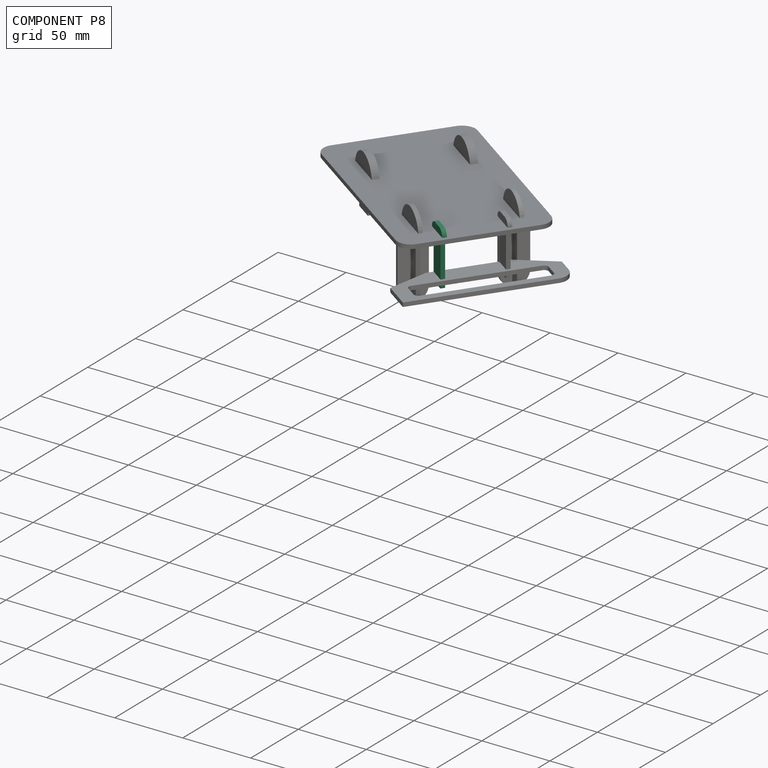
[diagram: component P8 — assembled]
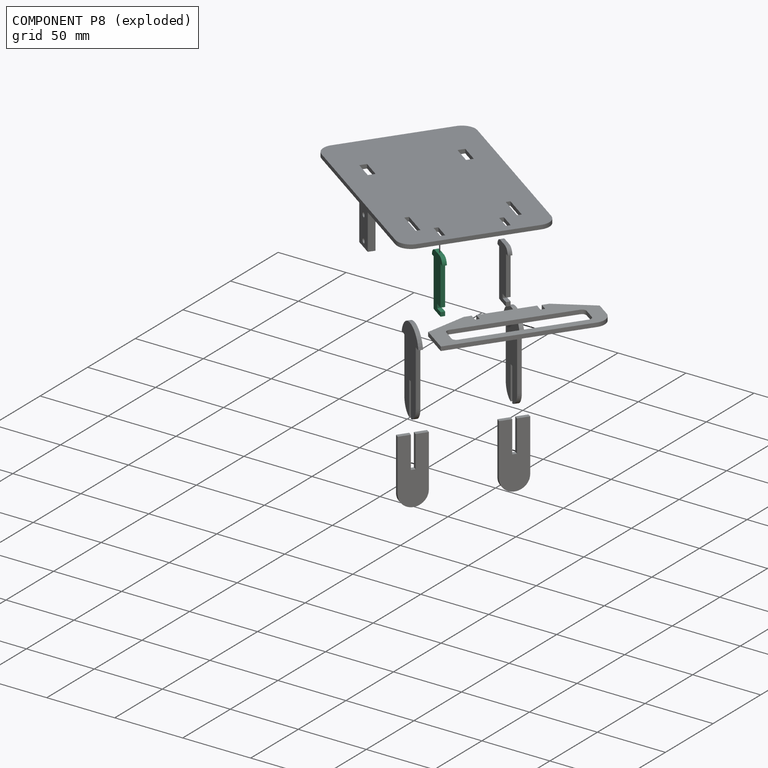
[diagram: component P8 — exploded]
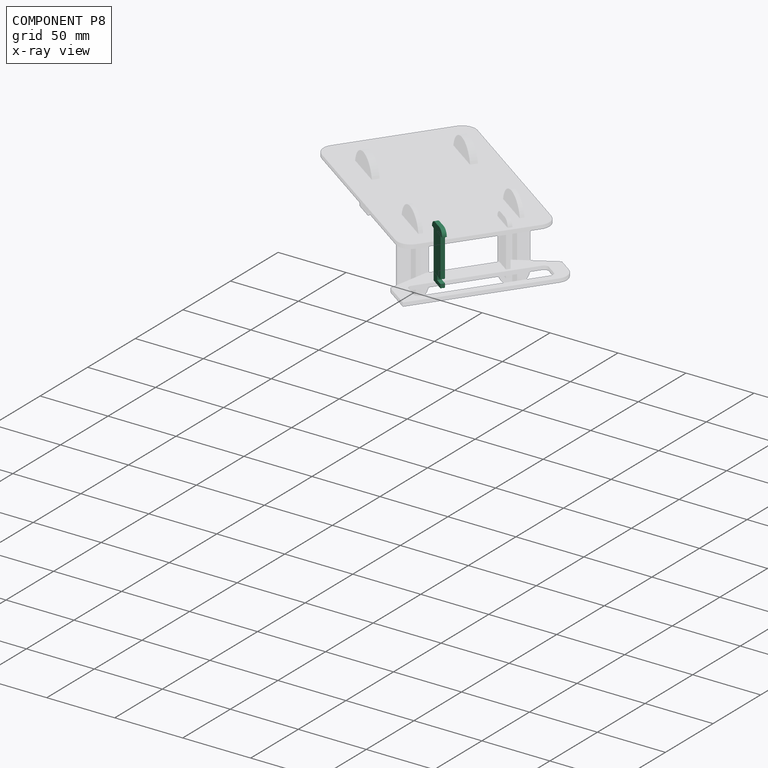
[diagram: component P8 — x-ray view]
COMPONENT P8 — same part as P1 (CADFS 00663880); its construction recipe is shown at P1.
Held by: FASTENED mate "고정 9" to P0; FASTENED mate "고정 7" to P3.
PROVENANCE & LICENSES
Assembly (occurrences, transforms, mates, per-part STEP geometry): AutoMate dataset, Zenodo record 7776208, CC0.
Construction recipes: CADFS (HuggingFace VladPyatov/CADFS, CC-BY-4.0, layered over the ABC dataset), FeatureScript reconstruction programs keyed by ABC model id.
Join: ABC meta listings map ABC model id -> Onshape documentId; within a shared document, parts are matched by geometric signature (bounding-box dims + volume at 0.1% relative tolerance, exact B-rep face/solid counts).
Verification: 10 of this assembly's 10 components carry a recipe attachment, and every attachment is mesh-verified: the CADFS STEP and the AutoMate member STEP were compared as meshes in their shared local frame (symmetric sampled-point-to-mesh distance); worst across the 10 attachments: below the mesh-comparison resolution (tessellation chordal tolerance ~0.27 mm) on a 180 mm part.
Renders: orthographic iso camera (az 35 / el 25); the floor grid conveys scale (grid pitch printed in each image; no ruler). In the exploded view each component is displaced by its stored offset vector: the offsets alone carry the explosion direction (mate normal/axis signs are not orientation cues and do not encode it), and separation distances are assigned per mate-chain, not proportionally to assembly-order depth.
